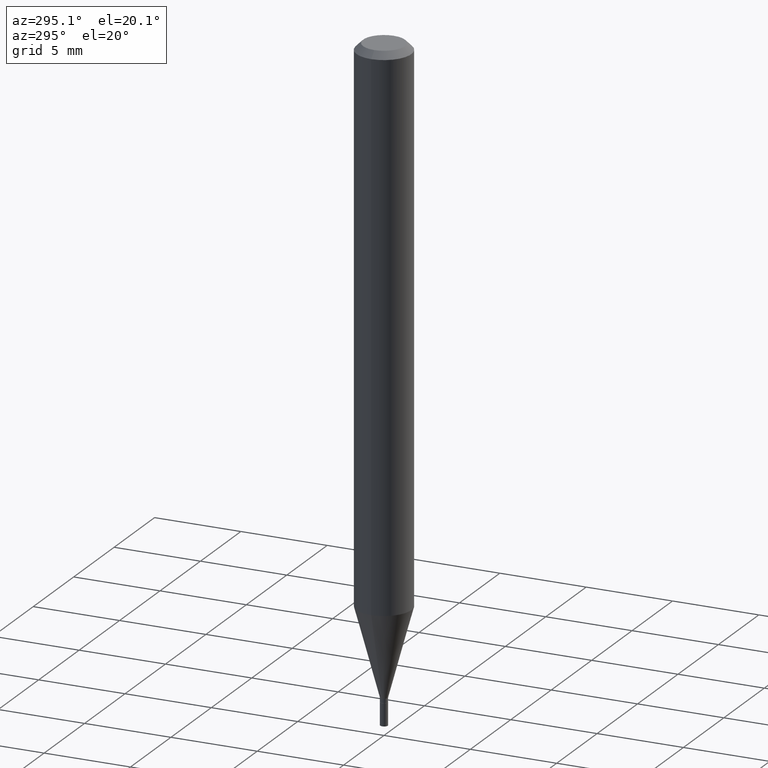
[diagram: clean part render]
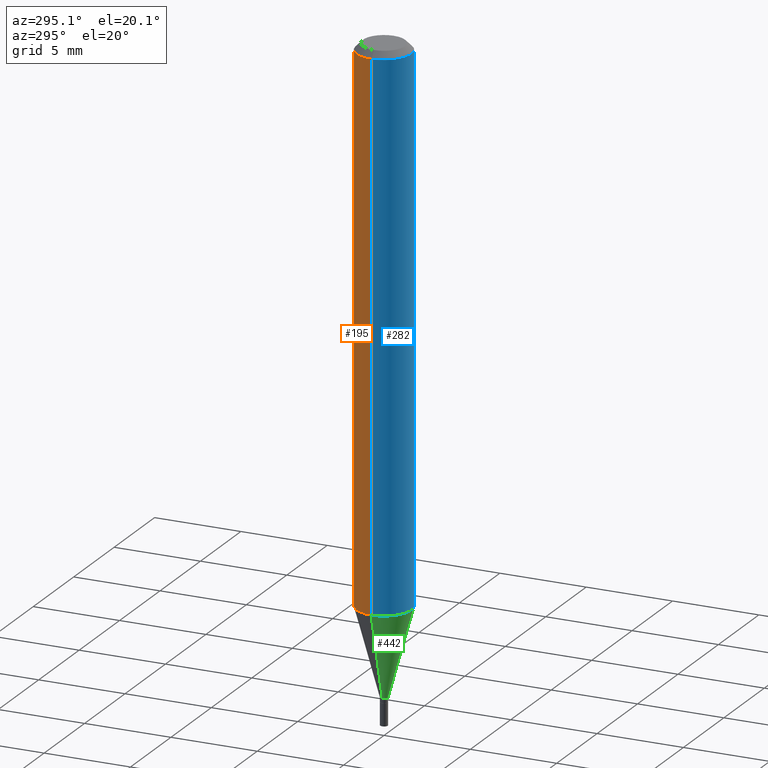
[diagram: same view with three faces highlighted in distinct colors, each labeled with its STEP entity id]
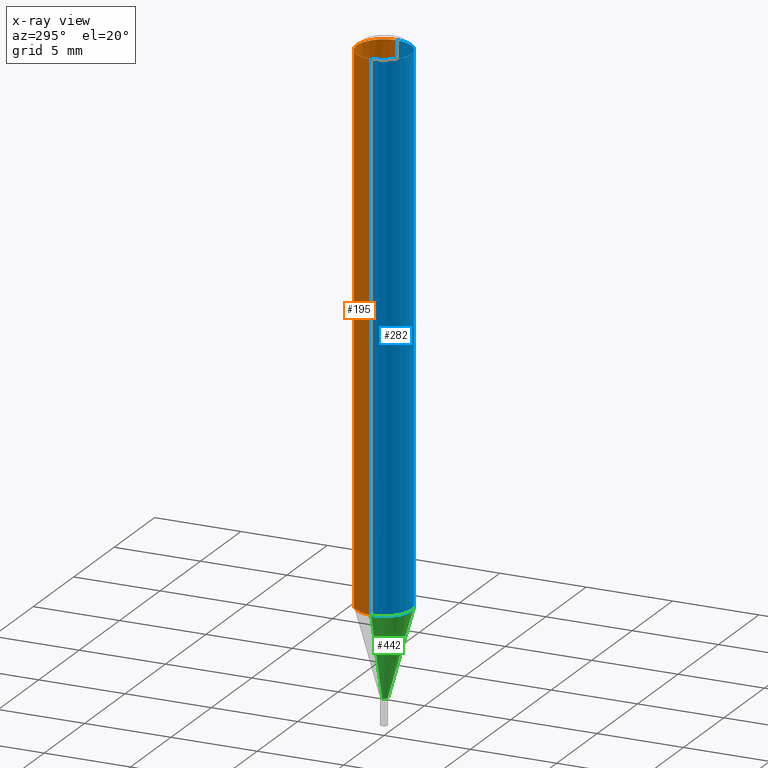
[diagram: x-ray of the same camera — body ghosted, the three highlighted faces saturated]
A machine part, auxiliary view with three faces highlighted in distinct colors.
The next image is the same camera in x-ray (body ghosted, the three faces saturated) — at least one of them is partly hidden behind the body in this view.
Their STEP definitions:

[orange] entity #195 — the highlighted cylindrical surface (edge-blend (fillet) strip) has radius 1.5875 mm, axis along (-0, 0, 1).
#3 = DIRECTION ( 'NONE',  ( -2.445468806185136597E-29, 3.491481338843145583E-15, 1.000000000000000000 ) ) ;
#12 = VERTEX_POINT ( 'NONE', #217 ) ;
#16 = AXIS2_PLACEMENT_3D ( 'NONE', #428, #3, #296 ) ;
#38 = CIRCLE ( 'NONE', #262, 0.06250000000000000000 ) ;
#69 = CARTESIAN_POINT ( 'NONE',  ( -0.06249999999999999306, -3.876511606232199217E-15, -1.237469256391281025 ) ) ;
#77 = LINE ( 'NONE', #416, #137 ) ;
#103 = EDGE_CURVE ( 'NONE', #352, #12, #77, .T. ) ;
#127 = ORIENTED_EDGE ( 'NONE', *, *, #103, .F. ) ;
#129 = CARTESIAN_POINT ( 'NONE',  ( -0.06250000000000000000, 4.440892098500626162E-16, -3.074334431409316114E-30 ) ) ;
#137 = VECTOR ( 'NONE', #177, 39.37007874015748143 ) ;
#144 = CARTESIAN_POINT ( 'NONE',  ( 3.668203209277705088E-31, -5.237222008264718399E-17, -0.01499999999999999944 ) ) ;
#151 = ORIENTED_EDGE ( 'NONE', *, *, #386, .T. ) ;
#157 = EDGE_LOOP ( 'NONE', ( #151, #427, #434, #127 ) ) ;
#159 = CARTESIAN_POINT ( 'NONE',  ( 0.06249999999999999306, -4.757035983437653502E-15, -1.237469256391281025 ) ) ;
#162 = LINE ( 'NONE', #129, #252 ) ;
#177 = DIRECTION ( 'NONE',  ( -2.445468806185136877E-29, 3.491481338843145188E-15, 1.000000000000000000 ) ) ;
#179 = CIRCLE ( 'NONE', #457, 0.06250000000000000000 ) ;
#195 = ADVANCED_FACE ( 'NONE', ( #462 ), #329, .T. ) ;
#213 = VERTEX_POINT ( 'NONE', #69 ) ;
#217 = CARTESIAN_POINT ( 'NONE',  ( 0.06250000000000000000, -4.888073874380388472E-16, -0.01499999999999999944 ) ) ;
#244 = CARTESIAN_POINT ( 'NONE',  ( -0.06250000000000000000, -1.742397308232391840E-15, -0.01499999999999999944 ) ) ;
#252 = VECTOR ( 'NONE', #259, 39.37007874015748143 ) ;
#257 = CARTESIAN_POINT ( 'NONE',  ( 3.026192465117994899E-29, -4.320600816082261833E-15, -1.237469256391281025 ) ) ;
#259 = DIRECTION ( 'NONE',  ( -2.445468806185136877E-29, 3.491481338843145188E-15, 1.000000000000000000 ) ) ;
#262 = AXIS2_PLACEMENT_3D ( 'NONE', #144, #320, #277 ) ;
#277 = DIRECTION ( 'NONE',  ( 1.000000000000000000, -6.982962677686266711E-15, 0.000000000000000000 ) ) ;
#296 = DIRECTION ( 'NONE',  ( 1.000000000000000000, -6.982962677686266711E-15, 4.876176775795935793E-29 ) ) ;
#320 = DIRECTION ( 'NONE',  ( -2.445468806185136597E-29, 3.491481338843145583E-15, 1.000000000000000000 ) ) ;
#329 = CYLINDRICAL_SURFACE ( 'NONE', #16, 0.06250000000000000000 ) ;
#352 = VERTEX_POINT ( 'NONE', #159 ) ;
#386 = EDGE_CURVE ( 'NONE', #352, #213, #179, .T. ) ;
#395 = EDGE_CURVE ( 'NONE', #213, #418, #162, .T. ) ;
#416 = CARTESIAN_POINT ( 'NONE',  ( 0.06250000000000000000, -4.364351673553916694E-16, 3.047610484872459871E-30 ) ) ;
#418 = VERTEX_POINT ( 'NONE', #244 ) ;
#427 = ORIENTED_EDGE ( 'NONE', *, *, #395, .T. ) ;
#428 = CARTESIAN_POINT ( 'NONE',  ( 0.000000000000000000, 0.000000000000000000, 0.000000000000000000 ) ) ;
#433 = DIRECTION ( 'NONE',  ( -2.445468806185136597E-29, 3.491481338843145583E-15, 1.000000000000000000 ) ) ;
#434 = ORIENTED_EDGE ( 'NONE', *, *, #456, .F. ) ;
#456 = EDGE_CURVE ( 'NONE', #12, #418, #38, .T. ) ;
#457 = AXIS2_PLACEMENT_3D ( 'NONE', #257, #433, #465 ) ;
#462 = FACE_OUTER_BOUND ( 'NONE', #157, .T. ) ;
#465 = DIRECTION ( 'NONE',  ( 1.000000000000000000, -6.982962677686262766E-15, 0.000000000000000000 ) ) ;

[blue] entity #282 — the highlighted cylindrical surface (edge-blend (fillet) strip) has radius 1.5875 mm, axis along (-0, 0, 1).
#9 = CIRCLE ( 'NONE', #332, 0.06250000000000000000 ) ;
#12 = VERTEX_POINT ( 'NONE', #217 ) ;
#28 = DIRECTION ( 'NONE',  ( 1.000000000000000000, -6.982962677686266711E-15, 0.000000000000000000 ) ) ;
#69 = CARTESIAN_POINT ( 'NONE',  ( -0.06249999999999999306, -3.876511606232199217E-15, -1.237469256391281025 ) ) ;
#77 = LINE ( 'NONE', #416, #137 ) ;
#79 = CYLINDRICAL_SURFACE ( 'NONE', #91, 0.06250000000000000000 ) ;
#91 = AXIS2_PLACEMENT_3D ( 'NONE', #309, #306, #393 ) ;
#101 = AXIS2_PLACEMENT_3D ( 'NONE', #276, #243, #28 ) ;
#103 = EDGE_CURVE ( 'NONE', #352, #12, #77, .T. ) ;
#115 = DIRECTION ( 'NONE',  ( 1.000000000000000000, -6.982962677686262766E-15, 0.000000000000000000 ) ) ;
#129 = CARTESIAN_POINT ( 'NONE',  ( -0.06250000000000000000, 4.440892098500626162E-16, -3.074334431409316114E-30 ) ) ;
#137 = VECTOR ( 'NONE', #177, 39.37007874015748143 ) ;
#143 = CARTESIAN_POINT ( 'NONE',  ( 3.026192465117994899E-29, -4.320600816082261833E-15, -1.237469256391281025 ) ) ;
#159 = CARTESIAN_POINT ( 'NONE',  ( 0.06249999999999999306, -4.757035983437653502E-15, -1.237469256391281025 ) ) ;
#162 = LINE ( 'NONE', #129, #252 ) ;
#164 = ORIENTED_EDGE ( 'NONE', *, *, #395, .F. ) ;
#170 = FACE_OUTER_BOUND ( 'NONE', #293, .T. ) ;
#177 = DIRECTION ( 'NONE',  ( -2.445468806185136877E-29, 3.491481338843145188E-15, 1.000000000000000000 ) ) ;
#213 = VERTEX_POINT ( 'NONE', #69 ) ;
#217 = CARTESIAN_POINT ( 'NONE',  ( 0.06250000000000000000, -4.888073874380388472E-16, -0.01499999999999999944 ) ) ;
#227 = CIRCLE ( 'NONE', #101, 0.06250000000000000000 ) ;
#243 = DIRECTION ( 'NONE',  ( -2.445468806185136597E-29, 3.491481338843145583E-15, 1.000000000000000000 ) ) ;
#244 = CARTESIAN_POINT ( 'NONE',  ( -0.06250000000000000000, -1.742397308232391840E-15, -0.01499999999999999944 ) ) ;
#252 = VECTOR ( 'NONE', #259, 39.37007874015748143 ) ;
#259 = DIRECTION ( 'NONE',  ( -2.445468806185136877E-29, 3.491481338843145188E-15, 1.000000000000000000 ) ) ;
#267 = EDGE_CURVE ( 'NONE', #213, #352, #9, .T. ) ;
#270 = EDGE_CURVE ( 'NONE', #418, #12, #227, .T. ) ;
#276 = CARTESIAN_POINT ( 'NONE',  ( 3.668203209277705088E-31, -5.237222008264718399E-17, -0.01499999999999999944 ) ) ;
#282 = ADVANCED_FACE ( 'NONE', ( #170 ), #79, .T. ) ;
#293 = EDGE_LOOP ( 'NONE', ( #164, #349, #403, #441 ) ) ;
#306 = DIRECTION ( 'NONE',  ( -2.445468806185136597E-29, 3.491481338843145583E-15, 1.000000000000000000 ) ) ;
#309 = CARTESIAN_POINT ( 'NONE',  ( 0.000000000000000000, 0.000000000000000000, 0.000000000000000000 ) ) ;
#314 = DIRECTION ( 'NONE',  ( -2.445468806185136597E-29, 3.491481338843145583E-15, 1.000000000000000000 ) ) ;
#332 = AXIS2_PLACEMENT_3D ( 'NONE', #143, #314, #115 ) ;
#349 = ORIENTED_EDGE ( 'NONE', *, *, #267, .T. ) ;
#352 = VERTEX_POINT ( 'NONE', #159 ) ;
#393 = DIRECTION ( 'NONE',  ( 1.000000000000000000, -6.982962677686266711E-15, 4.876176775795935793E-29 ) ) ;
#395 = EDGE_CURVE ( 'NONE', #213, #418, #162, .T. ) ;
#403 = ORIENTED_EDGE ( 'NONE', *, *, #103, .T. ) ;
#416 = CARTESIAN_POINT ( 'NONE',  ( 0.06250000000000000000, -4.364351673553916694E-16, 3.047610484872459871E-30 ) ) ;
#418 = VERTEX_POINT ( 'NONE', #244 ) ;
#441 = ORIENTED_EDGE ( 'NONE', *, *, #270, .F. ) ;

[green] entity #442 — the highlighted conical surface has half-angle 15 deg.
#4 = EDGE_CURVE ( 'NONE', #117, #370, #388, .T. ) ;
#9 = CIRCLE ( 'NONE', #332, 0.06250000000000000000 ) ;
#10 = CARTESIAN_POINT ( 'NONE',  ( 0.008499999999999922548, -5.083596829355619552E-15, -1.439000000000000057 ) ) ;
#18 = EDGE_CURVE ( 'NONE', #117, #213, #319, .T. ) ;
#39 = DIRECTION ( 'NONE',  ( -2.445468806185136597E-29, 3.491481338843145583E-15, 1.000000000000000000 ) ) ;
#54 = ORIENTED_EDGE ( 'NONE', *, *, #267, .F. ) ;
#59 = CONICAL_SURFACE ( 'NONE', #65, 0.008499999999999922548, 0.2617993877991501295 ) ;
#65 = AXIS2_PLACEMENT_3D ( 'NONE', #463, #39, #216 ) ;
#69 = CARTESIAN_POINT ( 'NONE',  ( -0.06249999999999999306, -3.876511606232199217E-15, -1.237469256391281025 ) ) ;
#78 = FACE_OUTER_BOUND ( 'NONE', #83, .T. ) ;
#83 = EDGE_LOOP ( 'NONE', ( #95, #233, #160, #54 ) ) ;
#95 = ORIENTED_EDGE ( 'NONE', *, *, #18, .F. ) ;
#106 = AXIS2_PLACEMENT_3D ( 'NONE', #398, #222, #392 ) ;
#115 = DIRECTION ( 'NONE',  ( 1.000000000000000000, -6.982962677686262766E-15, 0.000000000000000000 ) ) ;
#117 = VERTEX_POINT ( 'NONE', #118 ) ;
#118 = CARTESIAN_POINT ( 'NONE',  ( -0.008499999999999922548, -4.420178560143938947E-15, -1.439000000000000057 ) ) ;
#128 = DIRECTION ( 'NONE',  ( 0.2588190451025214611, 1.565188264969621573E-15, 0.9659258262890682012 ) ) ;
#143 = CARTESIAN_POINT ( 'NONE',  ( 3.026192465117994899E-29, -4.320600816082261833E-15, -1.237469256391281025 ) ) ;
#155 = LINE ( 'NONE', #322, #406 ) ;
#159 = CARTESIAN_POINT ( 'NONE',  ( 0.06249999999999999306, -4.757035983437653502E-15, -1.237469256391281025 ) ) ;
#160 = ORIENTED_EDGE ( 'NONE', *, *, #200, .T. ) ;
#180 = DIRECTION ( 'NONE',  ( -0.2588190451025214611, 5.211531920934551042E-15, 0.9659258262890682012 ) ) ;
#200 = EDGE_CURVE ( 'NONE', #370, #352, #155, .T. ) ;
#213 = VERTEX_POINT ( 'NONE', #69 ) ;
#215 = VECTOR ( 'NONE', #180, 39.37007874015747433 ) ;
#216 = DIRECTION ( 'NONE',  ( 1.000000000000000000, -6.982962677686225690E-15, 0.000000000000000000 ) ) ;
#222 = DIRECTION ( 'NONE',  ( -2.445468806185136597E-29, 3.491481338843145583E-15, 1.000000000000000000 ) ) ;
#233 = ORIENTED_EDGE ( 'NONE', *, *, #4, .T. ) ;
#267 = EDGE_CURVE ( 'NONE', #213, #352, #9, .T. ) ;
#314 = DIRECTION ( 'NONE',  ( -2.445468806185136597E-29, 3.491481338843145583E-15, 1.000000000000000000 ) ) ;
#319 = LINE ( 'NONE', #459, #215 ) ;
#322 = CARTESIAN_POINT ( 'NONE',  ( 0.008499999999999922548, -5.083596829355619552E-15, -1.439000000000000057 ) ) ;
#332 = AXIS2_PLACEMENT_3D ( 'NONE', #143, #314, #115 ) ;
#352 = VERTEX_POINT ( 'NONE', #159 ) ;
#370 = VERTEX_POINT ( 'NONE', #10 ) ;
#388 = CIRCLE ( 'NONE', #106, 0.008499999999999922548 ) ;
#392 = DIRECTION ( 'NONE',  ( 1.000000000000000000, -6.982962677686225690E-15, 0.000000000000000000 ) ) ;
#398 = CARTESIAN_POINT ( 'NONE',  ( 3.519029612100411702E-29, -5.024241646595286853E-15, -1.439000000000000057 ) ) ;
#406 = VECTOR ( 'NONE', #128, 39.37007874015747433 ) ;
#442 = ADVANCED_FACE ( 'NONE', ( #78 ), #59, .T. ) ;
#459 = CARTESIAN_POINT ( 'NONE',  ( -0.008499999999999922548, -4.963845514055678678E-15, -1.439000000000000057 ) ) ;
#463 = CARTESIAN_POINT ( 'NONE',  ( 3.519029612100411702E-29, -5.024241646595286853E-15, -1.439000000000000057 ) ) ;